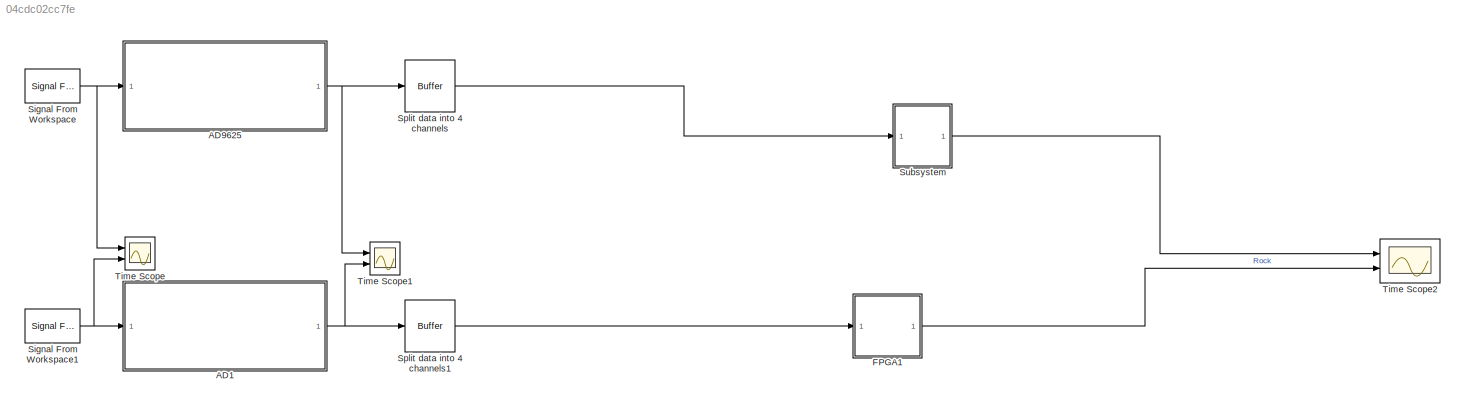
MODEL slx_04cdc02cc7fe
KIND model
CONFIG AbsTol = auto
CONFIG EnableMultiTasking = on
CONFIG FixedStep = 1/2500e6
CONFIG MaxStep = auto
CONFIG MinStep = auto
CONFIG RelTol = 1e-3
CONFIG SampleTimeConstraint = Unconstrained
CONFIG Solver = FixedStepDiscrete
CONFIG SolverName = FixedStepDiscrete
CONFIG StartTime = 0.0
CONFIG StopTime = 0.001
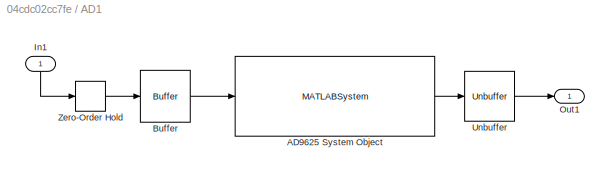
BLOCK [SubSystem] AD1
  Ports = [1, 1]
  RequestExecContextInheritance = off
BLOCK [MATLABSystem] AD1/AD9625 System Object
  Decimation = 8
  ExtJitter = 60e-15
  Fclk = ADC_Clock
  Gain = 0
  InputConfig = Normalized
  MaskDisplay = disp('AD9625');\nport_label('input',1,'in (V)');\nport_label('output',1,'out (Code)');
  MaskType = AD9625_sysobj
  Mode = ADC Only
  NcoFreq = 100e6
  Ports = [1, 1]
  SimulateUsing = Interpreted execution
  System = AD9625_sysobj
  Tessitura = 147e6
BLOCK [Buffer] AD1/Buffer
BLOCK [Inport] AD1/In1
  IconDisplay = Port number
BLOCK [Outport] AD1/Out1
  IconDisplay = Port number
BLOCK [Unbuffer] AD1/Unbuffer
  Ports = [1, 1]
BLOCK [ZeroOrderHold] AD1/Zero-Order Hold
  SampleTime = 1/2500e6
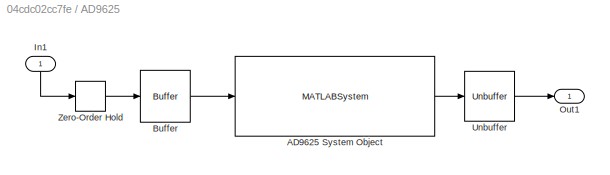
BLOCK [SubSystem] AD9625
  Ports = [1, 1]
  RequestExecContextInheritance = off
BLOCK [MATLABSystem] AD9625/AD9625 System Object
  Decimation = 8
  ExtJitter = 60e-15
  Fclk = ADC_Clock
  Gain = 0
  InputConfig = Normalized
  MaskDisplay = disp('AD9625');\nport_label('input',1,'in (V)');\nport_label('output',1,'out (Code)');
  MaskType = AD9625_sysobj
  Mode = ADC Only
  NcoFreq = 100e6
  Ports = [1, 1]
  SimulateUsing = Interpreted execution
  System = AD9625_sysobj
  Tessitura = 147e6
BLOCK [Buffer] AD9625/Buffer
BLOCK [Inport] AD9625/In1
  IconDisplay = Port number
BLOCK [Outport] AD9625/Out1
  IconDisplay = Port number
BLOCK [Unbuffer] AD9625/Unbuffer
  Ports = [1, 1]
BLOCK [ZeroOrderHold] AD9625/Zero-Order Hold
  SampleTime = 1/2500e6
BLOCK [SubSystem] FPGA1
  Ports = [1, 1]
  ReferencedSubsystem = FPGA
  RequestExecContextInheritance = off
BLOCK [Reference] Signal From Workspace  REF=dspsrcs4/Signal From
Workspace
  Ports = [0, 1]
  SourceBlock = dspsrcs4/Signal From\nWorkspace
  SourceProductBaseCode = DS
  SourceProductName = DSP System Toolbox
  SourceType = Signal From Workspace
BLOCK [Reference] Signal From Workspace1  REF=dspsrcs4/Signal From
Workspace
  Ports = [0, 1]
  SourceBlock = dspsrcs4/Signal From\nWorkspace
  SourceProductBaseCode = DS
  SourceProductName = DSP System Toolbox
  SourceType = Signal From Workspace
BLOCK [Buffer] Split data into 4 channels
  N = 4
  OutputFrames = off
BLOCK [Buffer] Split data into 4 channels1
  N = 4
  OutputFrames = off
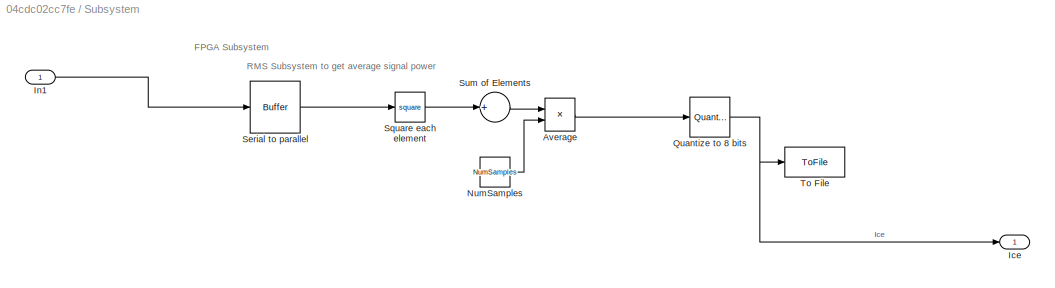
BLOCK [SubSystem] Subsystem
  Ports = [1, 1]
  RequestExecContextInheritance = off
BLOCK [Product] Subsystem/Average
  InputSameDT = off
  Inputs = */
  OutDataTypeStr = Inherit: Inherit via internal rule
  Ports = [2, 1]
BLOCK [Outport] Subsystem/Ice
  IconDisplay = Port number
BLOCK [Inport] Subsystem/In1
  IconDisplay = Port number
BLOCK [Constant] Subsystem/NumSamples
  SampleTime = NumSamples/ADC_Clock
  Value = NumSamples
BLOCK [Quantizer] Subsystem/Quantize to 8 bits
  LinearizeAsGain = off
  QuantizationInterval = 16
BLOCK [Buffer] Subsystem/Serial to parallel
  N = NumSamples
  OutputFrames = off
BLOCK [Math] Subsystem/Square each element
  Operator = square
  Ports = [1, 1]
  RndMeth = Zero
BLOCK [Sum] Subsystem/Sum of Elements
  InputSameDT = off
  Inputs = +
  OutDataTypeStr = Inherit: Inherit via internal rule
  Ports = [1, 1]
  SaturateOnIntegerOverflow = off
BLOCK [ToFile] Subsystem/To File
  Filename = processed_data.mat
  Ports = [1]
  SaveFormat = Timeseries
BLOCK [Scope] Time Scope
  DefaultConfigurationName = spbscopes.TimeScopeBlockCfg
  Floating = off
  NumInputPorts = 2
  Ports = [2]
  ScopeSpecificationString = spbscopes.TimeScopeBlockCfg('CurrentConfiguration', extmgr.ConfigurationSet(extmgr.Configuration('Core','General UI',true,'FigureColor',[0.156862745098039 0.156862745098039 0.156862745098039]),extmgr.Configuration('Core','Source UI',true),extmgr.Configuration('Sources','WiredSimulink',true,'DataLoggingVariableName','ScopeData1'),extmgr.Configuration('Visuals','Time Domain',true,'DisplayPropertyDef...<+1577ch>
  UserDataPersistent = on
BLOCK [Scope] Time Scope1
  DefaultConfigurationName = spbscopes.TimeScopeBlockCfg
  Floating = off
  NumInputPorts = 2
  Ports = [2]
  ScopeSpecificationString = spbscopes.TimeScopeBlockCfg('CurrentConfiguration', extmgr.ConfigurationSet(extmgr.Configuration('Core','General UI',true,'FigureColor',[0.156862745098039 0.156862745098039 0.156862745098039]),extmgr.Configuration('Core','Source UI',true),extmgr.Configuration('Sources','WiredSimulink',true,'DataLoggingVariableName','ScopeData2'),extmgr.Configuration('Visuals','Time Domain',true,'DisplayPropertyDef...<+1587ch>
  UserDataPersistent = on
BLOCK [Scope] Time Scope2
  DefaultConfigurationName = spbscopes.TimeScopeBlockCfg
  Floating = off
  NumInputPorts = 2
  Ports = [2]
  ScopeSpecificationString = spbscopes.TimeScopeBlockCfg('CurrentConfiguration', extmgr.ConfigurationSet(extmgr.Configuration('Core','General UI',true),extmgr.Configuration('Core','Source UI',true),extmgr.Configuration('Sources','WiredSimulink',true,'DataLoggingVariableName','ScopeData1'),extmgr.Configuration('Visuals','Time Domain',true,'DisplayPropertyDefaults',struct('MinYLimReal','-522730.00000','MaxYLimReal','4704570.000...<+1839ch>
  UserDataPersistent = on
ANNOTATION Subsystem: FPGA Subsystem
ANNOTATION Subsystem: RMS Subsystem to get average signal power
LINE AD1/AD9625 System Object:1 -> AD1/Unbuffer:1
LINE AD1/Buffer:1 -> AD1/AD9625 System Object:1
LINE AD1/In1:1 -> AD1/Zero-Order Hold:1
LINE AD1/Unbuffer:1 -> AD1/Out1:1
LINE AD1/Zero-Order Hold:1 -> AD1/Buffer:1
NET AD1:1 -> Split data into 4 channels1:1, Time Scope1:2
LINE AD9625/AD9625 System Object:1 -> AD9625/Unbuffer:1
LINE AD9625/Buffer:1 -> AD9625/AD9625 System Object:1
LINE AD9625/In1:1 -> AD9625/Zero-Order Hold:1
LINE AD9625/Unbuffer:1 -> AD9625/Out1:1
LINE AD9625/Zero-Order Hold:1 -> AD9625/Buffer:1
NET AD9625:1 -> Split data into 4 channels:1, Time Scope1:1
LINE FPGA1:1 -> Time Scope2:2
NET Signal From Workspace1:1 -> AD1:1, Time Scope:2
NET Signal From Workspace:1 -> AD9625:1, Time Scope:1
LINE Split data into 4 channels1:1 -> FPGA1:1
LINE Split data into 4 channels:1 -> Subsystem:1
LINE Subsystem/Average:1 -> Subsystem/Quantize to 8 bits:1
LINE Subsystem/In1:1 -> Subsystem/Serial to parallel:1
LINE Subsystem/NumSamples:1 -> Subsystem/Average:2
NET Subsystem/Quantize to 8 bits:1 -> Subsystem/Ice:1, Subsystem/To File:1
LINE Subsystem/Serial to parallel:1 -> Subsystem/Square each element:1
LINE Subsystem/Square each element:1 -> Subsystem/Sum of Elements:1
LINE Subsystem/Sum of Elements:1 -> Subsystem/Average:1
LINE Subsystem:1 -> Time Scope2:1
note: NET lines group one-source signal fan-out (src -> all destinations, sorted); 1:1 wires keep LINE
